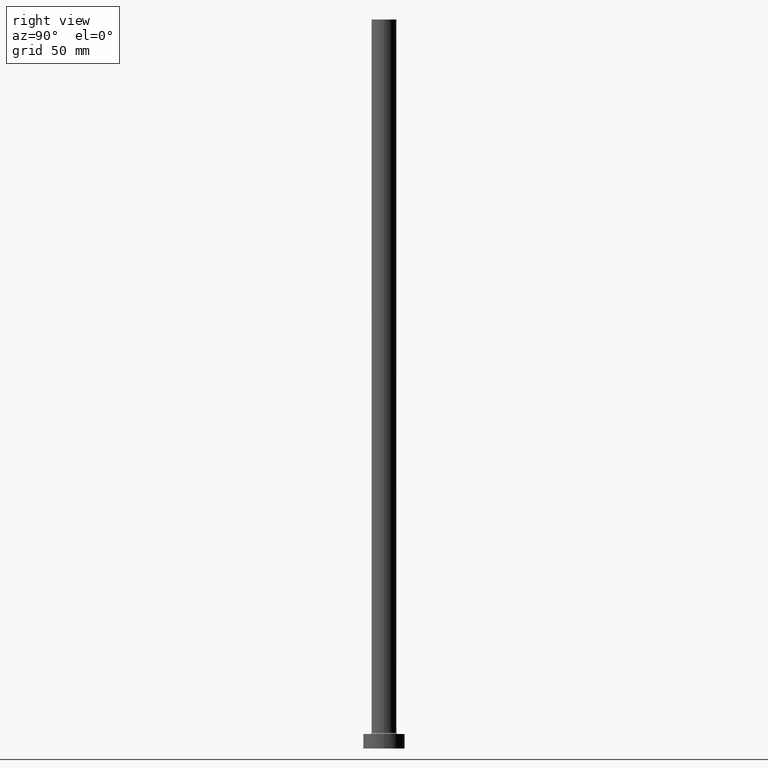
[diagram: clean part render]
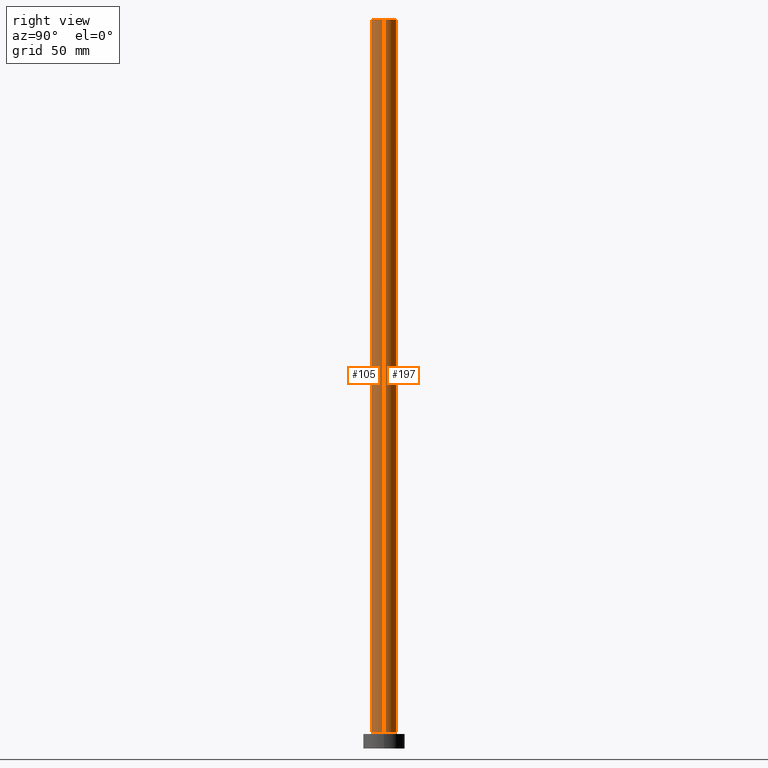
[diagram: same view with one multi-face feature highlighted, each face labeled with its STEP entity id]
A machine part, right view. The highlighted faces form ONE feature: a constant-radius fillet chain: 2 tangent blend faces with common blend radius 6 mm. The faces share edges in the B-rep.
Their STEP definitions:
[1] entity #197 (Cylinder):
#15 = CIRCLE ( 'NONE', #165, 6.000000000000000888 ) ;
#22 = DIRECTION ( 'NONE',  ( 1.000000000000000000, 0.000000000000000000, 0.000000000000000000 ) ) ;
#36 = ORIENTED_EDGE ( 'NONE', *, *, #264, .T. ) ;
#66 = LINE ( 'NONE', #278, #409 ) ;
#72 = VECTOR ( 'NONE', #365, 1000.000000000000000 ) ;
#75 = ORIENTED_EDGE ( 'NONE', *, *, #241, .F. ) ;
#95 = DIRECTION ( 'NONE',  ( 0.000000000000000000, 0.000000000000000000, 1.000000000000000000 ) ) ;
#103 = VERTEX_POINT ( 'NONE', #285 ) ;
#116 = FACE_OUTER_BOUND ( 'NONE', #388, .T. ) ;
#160 = VERTEX_POINT ( 'NONE', #192 ) ;
#165 = AXIS2_PLACEMENT_3D ( 'NONE', #239, #95, #22 ) ;
#173 = EDGE_CURVE ( 'NONE', #103, #160, #229, .T. ) ;
#192 = CARTESIAN_POINT ( 'NONE',  ( 6.000000000000000888, 7.347880794884120722E-16, 7.699999999999985079 ) ) ;
#194 = CYLINDRICAL_SURFACE ( 'NONE', #301, 6.000000000000000888 ) ;
#197 = ADVANCED_FACE ( 'NONE', ( #116 ), #194, .T. ) ;
#220 = AXIS2_PLACEMENT_3D ( 'NONE', #414, #240, #266 ) ;
#229 = LINE ( 'NONE', #369, #72 ) ;
#239 = CARTESIAN_POINT ( 'NONE',  ( 0.000000000000000000, 0.000000000000000000, 7.699999999999985079 ) ) ;
#240 = DIRECTION ( 'NONE',  ( 0.000000000000000000, 0.000000000000000000, 1.000000000000000000 ) ) ;
#241 = EDGE_CURVE ( 'NONE', #336, #331, #66, .T. ) ;
#248 = CARTESIAN_POINT ( 'NONE',  ( -6.000000000000000888, 0.000000000000000000, 7.699999999999985079 ) ) ;
#263 = DIRECTION ( 'NONE',  ( -0.000000000000000000, -0.000000000000000000, -1.000000000000000000 ) ) ;
#264 = EDGE_CURVE ( 'NONE', #160, #331, #15, .T. ) ;
#266 = DIRECTION ( 'NONE',  ( 1.000000000000000000, 0.000000000000000000, 0.000000000000000000 ) ) ;
#276 = ORIENTED_EDGE ( 'NONE', *, *, #427, .F. ) ;
#278 = CARTESIAN_POINT ( 'NONE',  ( -6.000000000000000888, 0.000000000000000000, 350.0000000000000568 ) ) ;
#282 = CIRCLE ( 'NONE', #220, 6.000000000000000888 ) ;
#285 = CARTESIAN_POINT ( 'NONE',  ( 6.000000000000000888, 7.347880794884120722E-16, 350.0000000000000568 ) ) ;
#295 = CARTESIAN_POINT ( 'NONE',  ( 0.000000000000000000, 0.000000000000000000, 350.0000000000000568 ) ) ;
#301 = AXIS2_PLACEMENT_3D ( 'NONE', #295, #263, #407 ) ;
#331 = VERTEX_POINT ( 'NONE', #248 ) ;
#336 = VERTEX_POINT ( 'NONE', #396 ) ;
#352 = DIRECTION ( 'NONE',  ( -0.000000000000000000, -0.000000000000000000, -1.000000000000000000 ) ) ;
#365 = DIRECTION ( 'NONE',  ( -0.000000000000000000, -0.000000000000000000, -1.000000000000000000 ) ) ;
#369 = CARTESIAN_POINT ( 'NONE',  ( 6.000000000000000888, 7.347880794884120722E-16, 350.0000000000000568 ) ) ;
#388 = EDGE_LOOP ( 'NONE', ( #276, #455, #36, #75 ) ) ;
#396 = CARTESIAN_POINT ( 'NONE',  ( -6.000000000000000888, 0.000000000000000000, 350.0000000000000568 ) ) ;
#407 = DIRECTION ( 'NONE',  ( -1.000000000000000000, 0.000000000000000000, 0.000000000000000000 ) ) ;
#409 = VECTOR ( 'NONE', #352, 1000.000000000000000 ) ;
#414 = CARTESIAN_POINT ( 'NONE',  ( 0.000000000000000000, 0.000000000000000000, 350.0000000000000568 ) ) ;
#427 = EDGE_CURVE ( 'NONE', #103, #336, #282, .T. ) ;
#455 = ORIENTED_EDGE ( 'NONE', *, *, #173, .T. ) ;
[2] entity #105 (Cylinder):
#3 = DIRECTION ( 'NONE',  ( 0.000000000000000000, 0.000000000000000000, 1.000000000000000000 ) ) ;
#11 = DIRECTION ( 'NONE',  ( -1.000000000000000000, 0.000000000000000000, 0.000000000000000000 ) ) ;
#23 = ORIENTED_EDGE ( 'NONE', *, *, #173, .F. ) ;
#62 = ORIENTED_EDGE ( 'NONE', *, *, #284, .F. ) ;
#66 = LINE ( 'NONE', #278, #409 ) ;
#69 = EDGE_LOOP ( 'NONE', ( #23, #62, #457, #393 ) ) ;
#72 = VECTOR ( 'NONE', #365, 1000.000000000000000 ) ;
#103 = VERTEX_POINT ( 'NONE', #285 ) ;
#105 = ADVANCED_FACE ( 'NONE', ( #434 ), #394, .T. ) ;
#139 = CARTESIAN_POINT ( 'NONE',  ( 0.000000000000000000, 0.000000000000000000, 350.0000000000000568 ) ) ;
#160 = VERTEX_POINT ( 'NONE', #192 ) ;
#173 = EDGE_CURVE ( 'NONE', #103, #160, #229, .T. ) ;
#192 = CARTESIAN_POINT ( 'NONE',  ( 6.000000000000000888, 7.347880794884120722E-16, 7.699999999999985079 ) ) ;
#200 = CIRCLE ( 'NONE', #265, 6.000000000000000888 ) ;
#202 = DIRECTION ( 'NONE',  ( 0.000000000000000000, 0.000000000000000000, 1.000000000000000000 ) ) ;
#210 = CIRCLE ( 'NONE', #428, 6.000000000000000888 ) ;
#229 = LINE ( 'NONE', #369, #72 ) ;
#241 = EDGE_CURVE ( 'NONE', #336, #331, #66, .T. ) ;
#248 = CARTESIAN_POINT ( 'NONE',  ( -6.000000000000000888, 0.000000000000000000, 7.699999999999985079 ) ) ;
#258 = EDGE_CURVE ( 'NONE', #331, #160, #210, .T. ) ;
#265 = AXIS2_PLACEMENT_3D ( 'NONE', #139, #202, #280 ) ;
#278 = CARTESIAN_POINT ( 'NONE',  ( -6.000000000000000888, 0.000000000000000000, 350.0000000000000568 ) ) ;
#280 = DIRECTION ( 'NONE',  ( 1.000000000000000000, 0.000000000000000000, 0.000000000000000000 ) ) ;
#284 = EDGE_CURVE ( 'NONE', #336, #103, #200, .T. ) ;
#285 = CARTESIAN_POINT ( 'NONE',  ( 6.000000000000000888, 7.347880794884120722E-16, 350.0000000000000568 ) ) ;
#331 = VERTEX_POINT ( 'NONE', #248 ) ;
#336 = VERTEX_POINT ( 'NONE', #396 ) ;
#352 = DIRECTION ( 'NONE',  ( -0.000000000000000000, -0.000000000000000000, -1.000000000000000000 ) ) ;
#357 = CARTESIAN_POINT ( 'NONE',  ( 0.000000000000000000, 0.000000000000000000, 350.0000000000000568 ) ) ;
#365 = DIRECTION ( 'NONE',  ( -0.000000000000000000, -0.000000000000000000, -1.000000000000000000 ) ) ;
#369 = CARTESIAN_POINT ( 'NONE',  ( 6.000000000000000888, 7.347880794884120722E-16, 350.0000000000000568 ) ) ;
#382 = CARTESIAN_POINT ( 'NONE',  ( 0.000000000000000000, 0.000000000000000000, 7.699999999999985079 ) ) ;
#393 = ORIENTED_EDGE ( 'NONE', *, *, #258, .T. ) ;
#394 = CYLINDRICAL_SURFACE ( 'NONE', #435, 6.000000000000000888 ) ;
#396 = CARTESIAN_POINT ( 'NONE',  ( -6.000000000000000888, 0.000000000000000000, 350.0000000000000568 ) ) ;
#409 = VECTOR ( 'NONE', #352, 1000.000000000000000 ) ;
#420 = DIRECTION ( 'NONE',  ( 1.000000000000000000, 0.000000000000000000, 0.000000000000000000 ) ) ;
#428 = AXIS2_PLACEMENT_3D ( 'NONE', #382, #3, #420 ) ;
#434 = FACE_OUTER_BOUND ( 'NONE', #69, .T. ) ;
#435 = AXIS2_PLACEMENT_3D ( 'NONE', #357, #436, #11 ) ;
#436 = DIRECTION ( 'NONE',  ( -0.000000000000000000, -0.000000000000000000, -1.000000000000000000 ) ) ;
#457 = ORIENTED_EDGE ( 'NONE', *, *, #241, .T. ) ;